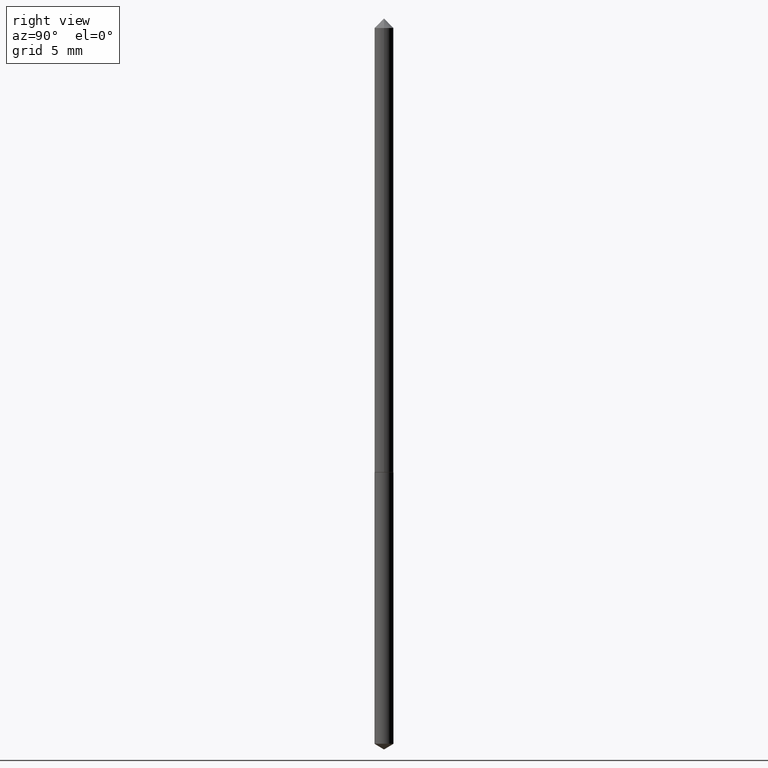
[diagram: clean part render]
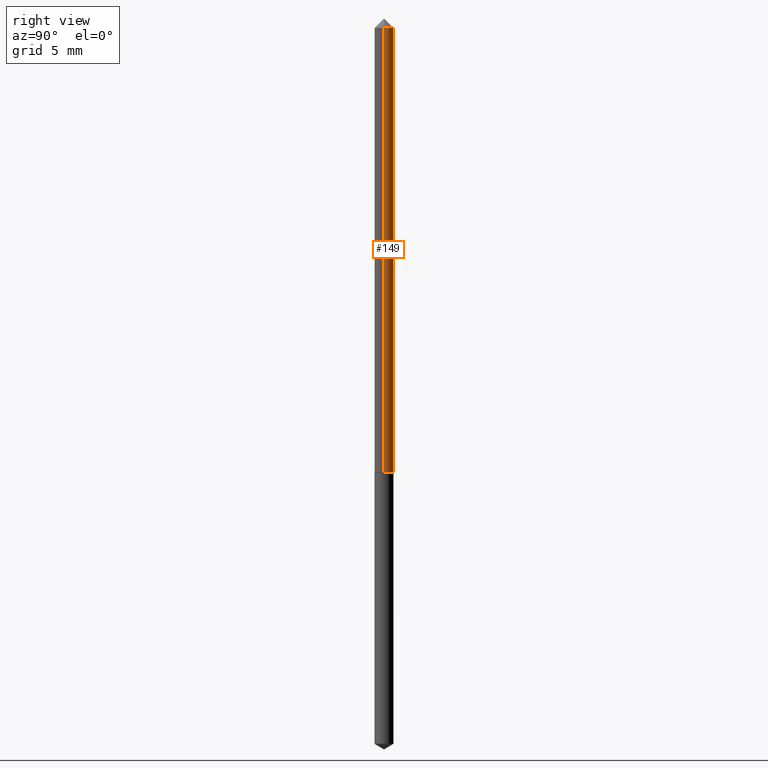
[diagram: same view with one face highlighted and labeled with its STEP entity id]
A machine part, right view. The second image highlights one B-rep face of the part: STEP entity #149.
In plain terms, the highlighted cylindrical surface (edge-blend (fillet) strip) has radius 0.4064 mm, axis along (-0, 0, 1).
Its self-contained STEP definition (entity closure, byte-faithful):
#1 = EDGE_CURVE ( 'NONE', #271, #68, #107, .T. ) ;
#19 = CARTESIAN_POINT ( 'NONE',  ( 7.642090019328601786E-31, -1.091087918388490144E-16, -0.03125000000000020123 ) ) ;
#26 = CARTESIAN_POINT ( 'NONE',  ( 0.01600000000000009401, -2.840320069148899113E-15, -0.7814999999999999725 ) ) ;
#35 = FACE_OUTER_BOUND ( 'NONE', #221, .T. ) ;
#40 = VERTEX_POINT ( 'NONE', #26 ) ;
#67 = CYLINDRICAL_SURFACE ( 'NONE', #296, 0.01600000000000004891 ) ;
#68 = VERTEX_POINT ( 'NONE', #280 ) ;
#85 = ORIENTED_EDGE ( 'NONE', *, *, #1, .F. ) ;
#107 = CIRCLE ( 'NONE', #153, 0.01600000000000000380 ) ;
#109 = VECTOR ( 'NONE', #180, 39.37007874015748143 ) ;
#116 = DIRECTION ( 'NONE',  ( -2.445468806185136877E-29, 3.491481338843145188E-15, 1.000000000000000000 ) ) ;
#129 = ORIENTED_EDGE ( 'NONE', *, *, #309, .T. ) ;
#140 = EDGE_CURVE ( 'NONE', #40, #271, #330, .T. ) ;
#144 = EDGE_CURVE ( 'NONE', #335, #68, #254, .T. ) ;
#149 = ADVANCED_FACE ( 'NONE', ( #35 ), #67, .T. ) ;
#153 = AXIS2_PLACEMENT_3D ( 'NONE', #19, #303, #358 ) ;
#160 = CARTESIAN_POINT ( 'NONE',  ( 1.911133872033684367E-29, -2.728592666305918152E-15, -0.7814999999999999725 ) ) ;
#170 = CARTESIAN_POINT ( 'NONE',  ( 0.01600000000000004891, -1.117274028429806164E-16, 7.801882841273521721E-31 ) ) ;
#180 = DIRECTION ( 'NONE',  ( -2.445468806185136877E-29, 3.491481338843145188E-15, 1.000000000000000000 ) ) ;
#185 = CARTESIAN_POINT ( 'NONE',  ( 0.01600000000000000380, -2.208361946818292980E-16, -0.03125000000000020123 ) ) ;
#204 = AXIS2_PLACEMENT_3D ( 'NONE', #160, #240, #214 ) ;
#209 = VECTOR ( 'NONE', #116, 39.37007874015748143 ) ;
#210 = ORIENTED_EDGE ( 'NONE', *, *, #144, .T. ) ;
#214 = DIRECTION ( 'NONE',  ( 1.000000000000000000, -6.982962677686261189E-15, 0.000000000000000000 ) ) ;
#221 = EDGE_LOOP ( 'NONE', ( #129, #210, #85, #332 ) ) ;
#240 = DIRECTION ( 'NONE',  ( -2.445468806185136597E-29, 3.491481338843145583E-15, 1.000000000000000000 ) ) ;
#254 = LINE ( 'NONE', #293, #109 ) ;
#271 = VERTEX_POINT ( 'NONE', #185 ) ;
#273 = CARTESIAN_POINT ( 'NONE',  ( -0.01600000000000009401, -2.614905828584301627E-15, -0.7814999999999999725 ) ) ;
#277 = CIRCLE ( 'NONE', #204, 0.01600000000000009401 ) ;
#280 = CARTESIAN_POINT ( 'NONE',  ( -0.01600000000000000380, -1.305163891350765523E-15, -0.03125000000000020123 ) ) ;
#293 = CARTESIAN_POINT ( 'NONE',  ( -0.01600000000000004891, 1.136868377216163772E-16, -7.870296144407873858E-31 ) ) ;
#296 = AXIS2_PLACEMENT_3D ( 'NONE', #317, #339, #314 ) ;
#303 = DIRECTION ( 'NONE',  ( -2.445468806185136597E-29, 3.491481338843145583E-15, 1.000000000000000000 ) ) ;
#309 = EDGE_CURVE ( 'NONE', #40, #335, #277, .T. ) ;
#314 = DIRECTION ( 'NONE',  ( 1.000000000000000000, -6.982962677686267499E-15, 4.876176775795936353E-29 ) ) ;
#317 = CARTESIAN_POINT ( 'NONE',  ( 0.000000000000000000, 0.000000000000000000, 0.000000000000000000 ) ) ;
#330 = LINE ( 'NONE', #170, #209 ) ;
#332 = ORIENTED_EDGE ( 'NONE', *, *, #140, .F. ) ;
#335 = VERTEX_POINT ( 'NONE', #273 ) ;
#339 = DIRECTION ( 'NONE',  ( -2.445468806185136597E-29, 3.491481338843145583E-15, 1.000000000000000000 ) ) ;
#358 = DIRECTION ( 'NONE',  ( 1.000000000000000000, -6.982962677686266711E-15, 0.000000000000000000 ) ) ;